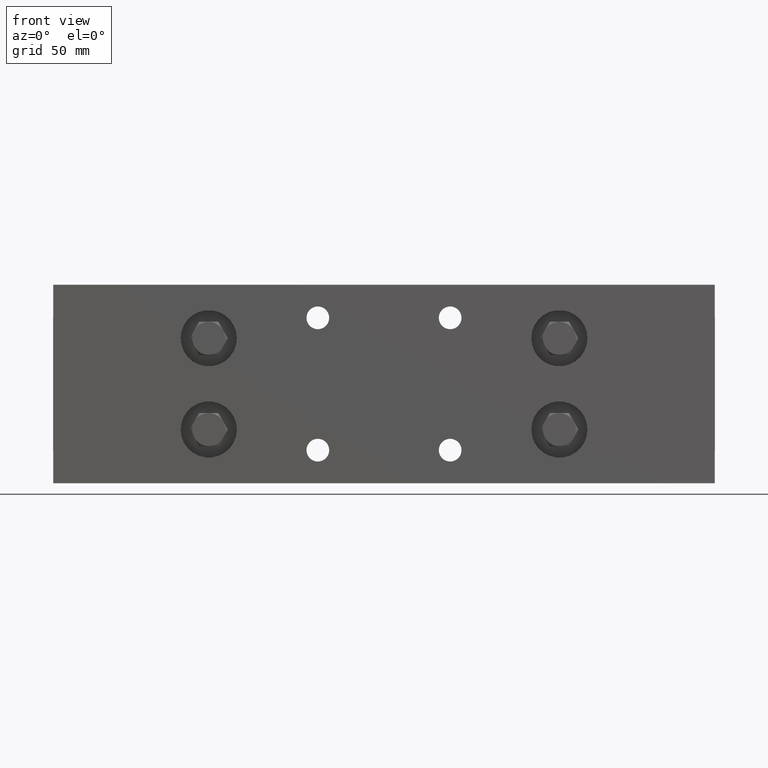
[diagram: clean part render]
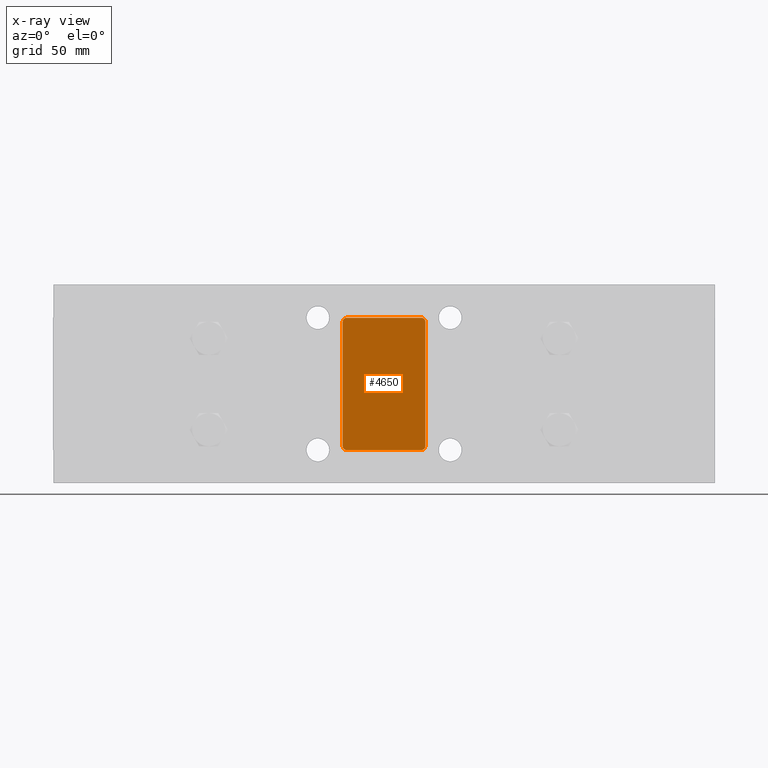
[diagram: x-ray — body ghosted, one internal face saturated and labeled with its STEP entity id]
A machine part, front view, then the same camera in x-ray: the body is ghosted and one INTERNAL B-rep face — a face not visible from any outside direction — is saturated and labeled: STEP entity #4650.
In plain terms, the highlighted planar face has unit normal (0, 1, -0).
Its self-contained STEP definition (entity closure, byte-faithful):
#19 = VECTOR ( 'NONE', #5065, 39.37007874015748100 ) ;
#961 = CIRCLE ( 'NONE', #4055, 0.06000000000000004600 ) ;
#965 = CARTESIAN_POINT ( 'NONE',  ( 4.437000000000002900, -4.312542466676866600E-020, -0.9419999999999820700 ) ) ;
#1094 = DIRECTION ( 'NONE',  ( -1.000000000000000000, 0.0000000000000000000, -3.491483361109382900E-015 ) ) ;
#1163 = VERTEX_POINT ( 'NONE', #17386 ) ;
#1196 = CARTESIAN_POINT ( 'NONE',  ( 4.377000000000003300, -4.312542466676866600E-020, -0.9419999999999817400 ) ) ;
#1310 = VERTEX_POINT ( 'NONE', #23767 ) ;
#1363 = LINE ( 'NONE', #8775, #19 ) ;
#1908 = VERTEX_POINT ( 'NONE', #9558 ) ;
#2482 = ORIENTED_EDGE ( 'NONE', *, *, #16478, .T. ) ;
#2574 = ORIENTED_EDGE ( 'NONE', *, *, #6585, .T. ) ;
#2866 = DIRECTION ( 'NONE',  ( 0.0000000000000000000, -1.510556520111788700E-031, -1.000000000000000000 ) ) ;
#2882 = DIRECTION ( 'NONE',  ( 5.275280946397254800E-046, 1.000000000000000000, -1.510899638004028700E-031 ) ) ;
#2961 = CARTESIAN_POINT ( 'NONE',  ( 5.626999999999996200, -4.312542466648461600E-020, 0.9380000000000217100 ) ) ;
#3996 = ORIENTED_EDGE ( 'NONE', *, *, #14204, .T. ) ;
#4055 = AXIS2_PLACEMENT_3D ( 'NONE', #18200, #6932, #20061 ) ;
#4083 = DIRECTION ( 'NONE',  ( 1.000000000000000000, 0.0000000000000000000, 3.491483361109382900E-015 ) ) ;
#4650 = ADVANCED_FACE ( 'NONE', ( #13405 ), #15864, .F. ) ;
#5065 = DIRECTION ( 'NONE',  ( -3.491483361109382100E-015, 1.510899638004028700E-031, 1.000000000000000000 ) ) ;
#6255 = CARTESIAN_POINT ( 'NONE',  ( 5.567000000000002800, -4.312542466676866600E-020, -0.9419999999999780800 ) ) ;
#6546 = CARTESIAN_POINT ( 'NONE',  ( 5.566999999999995700, -4.312542466647555200E-020, 0.9980000000000218700 ) ) ;
#6585 = EDGE_CURVE ( 'NONE', #1908, #17686, #1363, .T. ) ;
#6710 = AXIS2_PLACEMENT_3D ( 'NONE', #14024, #2882, #15939 ) ;
#6840 = ORIENTED_EDGE ( 'NONE', *, *, #15245, .T. ) ;
#6932 = DIRECTION ( 'NONE',  ( -5.275280946397254800E-046, -1.000000000000000000, 1.510899638004028700E-031 ) ) ;
#7750 = LINE ( 'NONE', #6546, #21238 ) ;
#8161 = DIRECTION ( 'NONE',  ( 0.0000000000000000000, -1.510556520111788700E-031, -1.000000000000000000 ) ) ;
#8687 = EDGE_CURVE ( 'NONE', #9272, #1908, #21325, .T. ) ;
#8775 = CARTESIAN_POINT ( 'NONE',  ( 5.627000000000003300, -4.312542466676866600E-020, -0.9419999999999774100 ) ) ;
#9222 = CARTESIAN_POINT ( 'NONE',  ( 4.436999999999996700, -4.312542466647555200E-020, 0.9980000000000179800 ) ) ;
#9272 = VERTEX_POINT ( 'NONE', #19699 ) ;
#9350 = VERTEX_POINT ( 'NONE', #1196 ) ;
#9558 = CARTESIAN_POINT ( 'NONE',  ( 5.627000000000003300, -4.312542466676866600E-020, -0.9419999999999774100 ) ) ;
#10469 = EDGE_CURVE ( 'NONE', #17686, #1163, #12150, .T. ) ;
#10717 = CARTESIAN_POINT ( 'NONE',  ( 5.566999999999996600, -4.312542466648461600E-020, 0.9380000000000219300 ) ) ;
#11204 = DIRECTION ( 'NONE',  ( 3.491483361109382100E-015, -1.510899638004028700E-031, -1.000000000000000000 ) ) ;
#11784 = EDGE_LOOP ( 'NONE', ( #2482, #24179, #16440, #2574, #22040, #3996, #6840, #13311 ) ) ;
#12150 = CIRCLE ( 'NONE', #15774, 0.05999999999999990800 ) ;
#12555 = CARTESIAN_POINT ( 'NONE',  ( 4.376999999999996200, -4.312542466648461600E-020, 0.9380000000000172600 ) ) ;
#12599 = DIRECTION ( 'NONE',  ( 0.0000000000000000000, 1.510556520111792300E-031, 1.000000000000000000 ) ) ;
#13068 = AXIS2_PLACEMENT_3D ( 'NONE', #965, #14007, #2866 ) ;
#13081 = LINE ( 'NONE', #17194, #13325 ) ;
#13108 = CARTESIAN_POINT ( 'NONE',  ( 4.377000000000003300, -4.312542466676866600E-020, -0.9419999999999817400 ) ) ;
#13311 = ORIENTED_EDGE ( 'NONE', *, *, #20670, .T. ) ;
#13325 = VECTOR ( 'NONE', #4083, 39.37007874015748100 ) ;
#13405 = FACE_OUTER_BOUND ( 'NONE', #11784, .T. ) ;
#13732 = CIRCLE ( 'NONE', #13068, 0.06000000000000004600 ) ;
#14007 = DIRECTION ( 'NONE',  ( -5.275280946397254800E-046, -1.000000000000000000, 1.510899638004028700E-031 ) ) ;
#14024 = CARTESIAN_POINT ( 'NONE',  ( 4.437000000000002900, -4.312542466676866600E-020, -0.9419999999999820700 ) ) ;
#14204 = EDGE_CURVE ( 'NONE', #1163, #22651, #7750, .T. ) ;
#14385 = VECTOR ( 'NONE', #11204, 39.37007874015748100 ) ;
#14689 = LINE ( 'NONE', #13108, #14385 ) ;
#15245 = EDGE_CURVE ( 'NONE', #22651, #20461, #961, .T. ) ;
#15774 = AXIS2_PLACEMENT_3D ( 'NONE', #10717, #23958, #12599 ) ;
#15864 = PLANE ( 'NONE',  #6710 ) ;
#15939 = DIRECTION ( 'NONE',  ( 3.491483361109382100E-015, -1.510899638004028700E-031, -1.000000000000000000 ) ) ;
#16440 = ORIENTED_EDGE ( 'NONE', *, *, #8687, .T. ) ;
#16478 = EDGE_CURVE ( 'NONE', #9350, #1310, #13732, .T. ) ;
#16828 = AXIS2_PLACEMENT_3D ( 'NONE', #6255, #19400, #8161 ) ;
#17194 = CARTESIAN_POINT ( 'NONE',  ( 5.567000000000002800, -4.312542466677773000E-020, -1.001999999999978200 ) ) ;
#17386 = CARTESIAN_POINT ( 'NONE',  ( 5.566999999999995700, -4.312542466647555200E-020, 0.9980000000000218700 ) ) ;
#17686 = VERTEX_POINT ( 'NONE', #2961 ) ;
#18200 = CARTESIAN_POINT ( 'NONE',  ( 4.436999999999996700, -4.312542466648461600E-020, 0.9380000000000181500 ) ) ;
#19400 = DIRECTION ( 'NONE',  ( -5.275280946397254800E-046, -1.000000000000000000, 1.510899638004028700E-031 ) ) ;
#19699 = CARTESIAN_POINT ( 'NONE',  ( 5.567000000000002800, -4.312542466677773000E-020, -1.001999999999978200 ) ) ;
#20061 = DIRECTION ( 'NONE',  ( 0.0000000000000000000, -1.510556520111788700E-031, -1.000000000000000000 ) ) ;
#20461 = VERTEX_POINT ( 'NONE', #12555 ) ;
#20670 = EDGE_CURVE ( 'NONE', #20461, #9350, #14689, .T. ) ;
#21238 = VECTOR ( 'NONE', #1094, 39.37007874015748100 ) ;
#21325 = CIRCLE ( 'NONE', #16828, 0.06000000000000004600 ) ;
#22040 = ORIENTED_EDGE ( 'NONE', *, *, #10469, .T. ) ;
#22171 = EDGE_CURVE ( 'NONE', #1310, #9272, #13081, .T. ) ;
#22651 = VERTEX_POINT ( 'NONE', #9222 ) ;
#23767 = CARTESIAN_POINT ( 'NONE',  ( 4.437000000000003800, -4.312542466677773000E-020, -1.001999999999982000 ) ) ;
#23958 = DIRECTION ( 'NONE',  ( -5.275280946397254800E-046, -1.000000000000000000, 1.510899638004028700E-031 ) ) ;
#24179 = ORIENTED_EDGE ( 'NONE', *, *, #22171, .T. ) ;